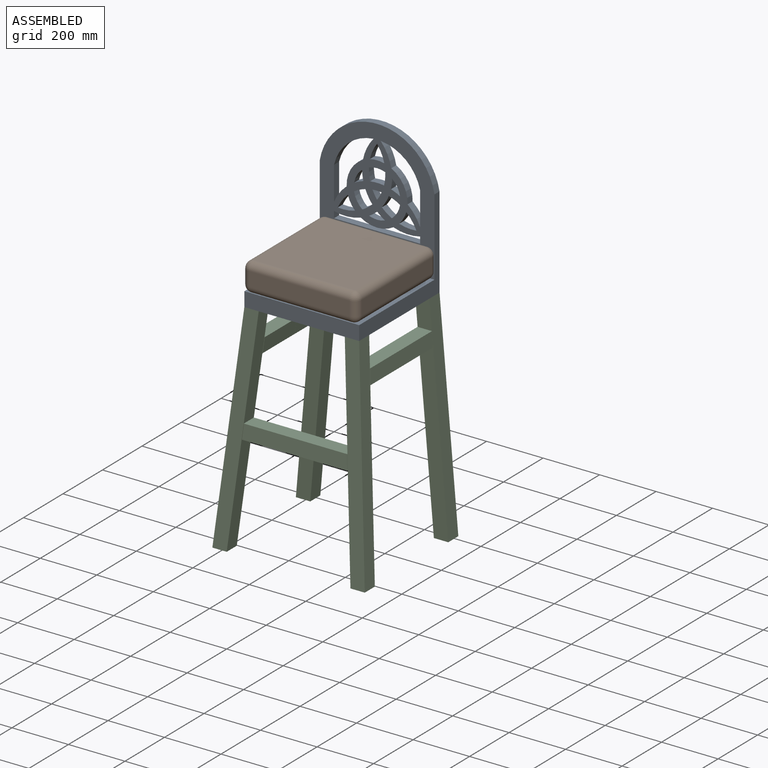
[diagram: assembled view]
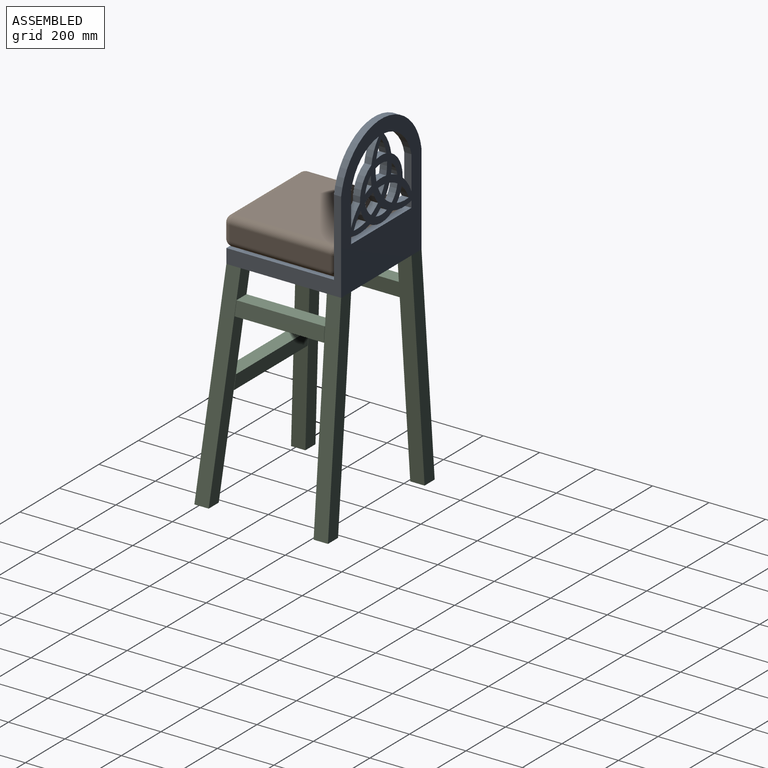
[diagram: assembled view, second angle]
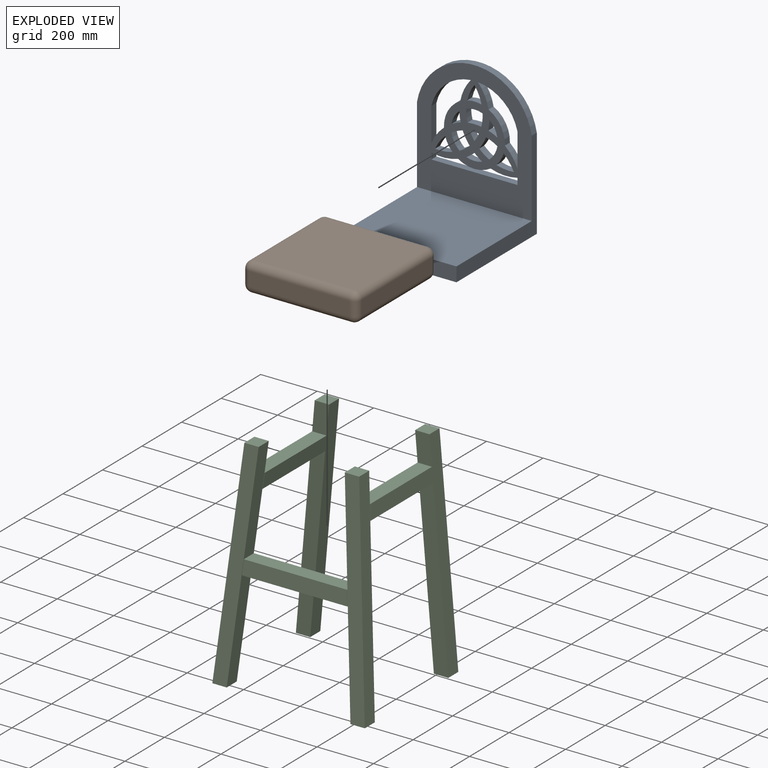
[diagram: exploded view]
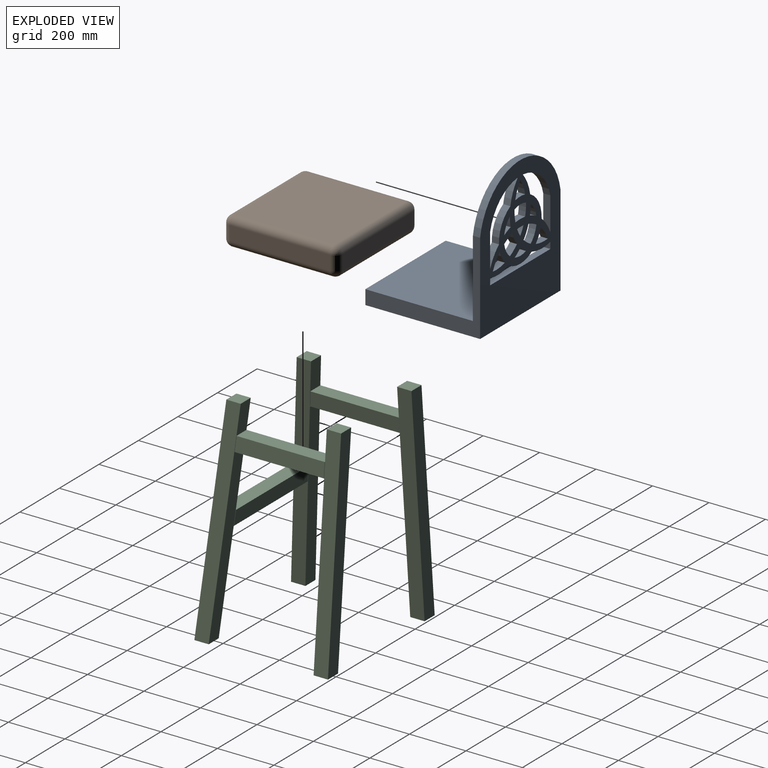
[diagram: exploded view, second angle]
ASSEMBLY  parts=3 mates=2
PART A: 57 faces, bbox 406.4x406.4x495.3 mm
  f0: plane 406.4x323.85mm, normal (-1,0,0), area 27580.6mm2, adj f1,f2,f4,f5,f6,f7
  f1: plane 495.3x406.4mm, normal (0,1,0), area 140049.4mm2, adj f0,f3,f6,f7,f8,f9,f10,f11
  f2: plane 444.5x406.4mm, normal (0,-1,0), area 119404.3mm2, adj f0,f3,f5,f7,f8,f9,f10,f11
  f3: plane 406.4x323.85mm, normal (1,0,0), area 27580.6mm2, adj f1,f2,f4,f5,f6,f7
  f4: plane 406.4x50.8mm, normal (0,-1,0), area 20645.1mm2, adj f0,f3,f5,f6
  f5: plane 406.4x381mm, normal (0,0,1), area 154838.4mm2, adj f0,f2,f3,f4
  f6: plane 406.4x406.4mm, normal (0,0,-1), area 165161mm2, adj f0,f1,f3,f4
  f7: cylinder r=206.14mm len=406.4mm, axis (0,-1,0), area 14678.6mm2, adj f0,f1,f2,f3
  f8: cylinder r=165.44mm len=42.58mm, axis (0,-1,0), area 1253.6mm2, adj f1,f2,f9,f11
  f9: cylinder r=152.4mm len=39.94mm, axis (0,-1,0), area 1114.7mm2, adj f1,f2,f8,f10
  f10: cylinder r=82.55mm len=50.43mm, axis (0,-1,0), area 1511.5mm2, adj f1,f2,f9,f11
  f11: cylinder r=152.4mm len=35.41mm, axis (0,-1,0), area 1114.7mm2, adj f1,f2,f8,f10
  f12: cylinder r=107.95mm len=44.07mm, axis (0,-1,0), area 1304.7mm2, adj f1,f2,f13,f14
  f13: cylinder r=152.4mm len=50.01mm, axis (0,-1,0), area 1572.1mm2, adj f1,f2,f12,f14
  f14: cylinder r=152.4mm len=61.18mm, axis (0,-1,0), area 1572.1mm2, adj f1,f2,f12,f13
  f15: cylinder r=165.44mm len=32.46mm, axis (0,-1,0), area 899.5mm2, adj f1,f2,f16,f17
  f16: cylinder r=165.44mm len=35.11mm, axis (0,-1,0), area 899.5mm2, adj f1,f2,f15,f17
  f17: cylinder r=82.55mm len=49.09mm, axis (0,-1,0), area 1469.8mm2, adj f1,f2,f15,f16
  f18: cylinder r=107.95mm len=50.88mm, axis (0,-1,0), area 1304.7mm2, adj f1,f2,f19,f20
  f19: cylinder r=152.4mm len=55.96mm, axis (0,-1,0), area 1572.1mm2, adj f1,f2,f18,f20
  f20: cylinder r=152.4mm len=55.96mm, axis (0,-1,0), area 1572.1mm2, adj f1,f2,f18,f19
  f21: cylinder r=107.95mm len=100.03mm, axis (0,-1,0), area 3095.5mm2, adj f1,f2,f22,f25
  f22: cylinder r=165.44mm len=77.43mm, axis (0,-1,0), area 2208.9mm2, adj f1,f2,f21,f23
  f23: cylinder r=156.58mm len=139.64mm, axis (0,-1,0), area 5001.8mm2, adj f1,f2,f22,f24
  f24: plane 118.4x25.4mm, normal (1,0,0), area 3007.3mm2, adj f1,f2,f23,f25
  f25: cylinder r=165.44mm len=61.07mm, axis (0,-1,0), area 1937mm2, adj f1,f2,f21,f24
  f26: cylinder r=165.44mm len=49.17mm, axis (0,-1,0), area 1253.6mm2, adj f1,f2,f27,f29
  f27: cylinder r=152.4mm len=43.5mm, axis (0,-1,0), area 1114.7mm2, adj f1,f2,f26,f28
  f28: cylinder r=82.55mm len=58.23mm, axis (0,-1,0), area 1511.5mm2, adj f1,f2,f27,f29
  f29: cylinder r=152.4mm len=43.5mm, axis (0,-1,0), area 1114.7mm2, adj f1,f2,f26,f28
  f30: cylinder r=165.44mm len=77.43mm, axis (0,-1,0), area 2208.9mm2, adj f1,f2,f31,f34
  f31: cylinder r=107.95mm len=100.03mm, axis (0,-1,0), area 3095.5mm2, adj f1,f2,f30,f32
  f32: cylinder r=165.44mm len=61.07mm, axis (0,-1,0), area 1937mm2, adj f1,f2,f31,f33
  f33: plane 118.4x25.4mm, normal (-1,0,0), area 3007.3mm2, adj f1,f2,f32,f34
  f34: cylinder r=156.58mm len=139.64mm, axis (0,-1,0), area 5001.8mm2, adj f1,f2,f30,f33
  f35: cylinder r=165.44mm len=35.11mm, axis (0,-1,0), area 899.5mm2, adj f1,f2,f36,f37
  f36: cylinder r=165.44mm len=32.46mm, axis (0,-1,0), area 899.5mm2, adj f1,f2,f35,f37
  f37: cylinder r=82.55mm len=49.09mm, axis (0,-1,0), area 1469.8mm2, adj f1,f2,f35,f36
  f38: cylinder r=152.4mm len=61.18mm, axis (0,-1,0), area 1572.1mm2, adj f1,f2,f39,f40
  f39: cylinder r=152.4mm len=50.01mm, axis (0,-1,0), area 1572.1mm2, adj f1,f2,f38,f40
  f40: cylinder r=107.95mm len=44.07mm, axis (0,-1,0), area 1304.7mm2, adj f1,f2,f38,f39
  f41: plane 25.4x22.92mm, normal (1,0,0), area 582.1mm2, adj f1,f2,f42,f46
  f42: plane 304.8x25.4mm, normal (0,0,1), area 7741.9mm2, adj f1,f2,f41,f43
  f43: plane 25.4x22.92mm, normal (-1,0,0), area 582.1mm2, adj f1,f2,f42,f44
  f44: cylinder r=165.44mm len=94.65mm, axis (0,-1,0), area 2440.9mm2, adj f1,f2,f43,f45
  f45: cylinder r=107.95mm len=115.5mm, axis (0,-1,0), area 3095.5mm2, adj f1,f2,f44,f46
  f46: cylinder r=165.44mm len=94.65mm, axis (0,-1,0), area 2440.9mm2, adj f1,f2,f41,f45
  f47: cylinder r=165.44mm len=28.34mm, axis (0,-1,0), area 899.5mm2, adj f1,f2,f48,f49
  f48: cylinder r=82.55mm len=56.69mm, axis (0,-1,0), area 1469.8mm2, adj f1,f2,f47,f49
  f49: cylinder r=165.44mm len=28.34mm, axis (0,-1,0), area 899.5mm2, adj f1,f2,f47,f48
  f50: cylinder r=152.4mm len=35.41mm, axis (0,-1,0), area 1114.7mm2, adj f1,f2,f51,f53
  f51: cylinder r=82.55mm len=50.43mm, axis (0,-1,0), area 1511.5mm2, adj f1,f2,f50,f52
  f52: cylinder r=152.4mm len=39.94mm, axis (0,-1,0), area 1114.7mm2, adj f1,f2,f51,f53
  f53: cylinder r=165.44mm len=42.58mm, axis (0,-1,0), area 1253.6mm2, adj f1,f2,f50,f52
  f54: cylinder r=152.4mm len=27.98mm, axis (0,-1,0), area 822mm2, adj f1,f2,f55,f56
  f55: cylinder r=152.4mm len=27.98mm, axis (0,-1,0), area 822mm2, adj f1,f2,f54,f56
  f56: cylinder r=152.4mm len=32.3mm, axis (0,-1,0), area 822mm2, adj f1,f2,f54,f55
PART B: 26 faces, bbox 406.4x406.4x101.6 mm
  f0: plane 355.6x50.8mm, normal (0,-1,0), area 18064.5mm2, adj f14,f19,f22,f25
  f1: plane 355.6x50.8mm, normal (1,0,0), area 18064.5mm2, adj f11,f20,f21,f25
  f2: plane 355.6x50.8mm, normal (0,1,0), area 18064.5mm2, adj f6,f10,f11,f12
  f3: plane 355.6x50.8mm, normal (-1,0,0), area 18064.5mm2, adj f6,f9,f13,f14
  f4: plane 355.6x355.6mm, normal (0,0,1), area 126451.4mm2, adj f9,f10,f19,f20
  f5: plane 355.6x355.6mm, normal (0,0,-1), area 126451.4mm2, adj f12,f13,f21,f22
  f6: cylinder r=25.4mm len=50.8mm, axis (0,0,1), area 2026.8mm2, adj f2,f3,f7,f8
  f7: sphere r=25.4mm, area 1013.4mm2, adj f6,f9,f10
  f8: sphere r=25.4mm, area 1013.4mm2, adj f6,f12,f13
  f9: cylinder r=25.4mm len=355.6mm, axis (0,1,0), area 14187.8mm2, adj f3,f4,f7,f15
  f10: cylinder r=25.4mm len=355.6mm, axis (1,0,0), area 14187.8mm2, adj f2,f4,f7,f16
  f11: cylinder r=25.4mm len=50.8mm, axis (0,0,-1), area 2026.8mm2, adj f1,f2,f16,f17
  f12: cylinder r=25.4mm len=355.6mm, axis (-1,0,0), area 14187.8mm2, adj f2,f5,f8,f17
  f13: cylinder r=25.4mm len=355.6mm, axis (0,-1,0), area 14187.8mm2, adj f3,f5,f8,f18
  f14: cylinder r=25.4mm len=50.8mm, axis (0,0,-1), area 2026.8mm2, adj f0,f3,f15,f18
  f15: sphere r=25.4mm, area 1013.4mm2, adj f9,f14,f19
  f16: sphere r=25.4mm, area 1013.4mm2, adj f10,f11,f20
  f17: sphere r=25.4mm, area 1013.4mm2, adj f11,f12,f21
  f18: sphere r=25.4mm, area 1013.4mm2, adj f13,f14,f22
  f19: cylinder r=25.4mm len=355.6mm, axis (-1,0,0), area 14187.8mm2, adj f0,f4,f15,f23
  f20: cylinder r=25.4mm len=355.6mm, axis (0,-1,0), area 14187.8mm2, adj f1,f4,f16,f23
  f21: cylinder r=25.4mm len=355.6mm, axis (0,1,0), area 14187.8mm2, adj f1,f5,f17,f24
  f22: cylinder r=25.4mm len=355.6mm, axis (1,0,0), area 14187.8mm2, adj f0,f5,f18,f24
  f23: sphere r=25.4mm, area 1013.4mm2, adj f19,f20,f25
  f24: sphere r=25.4mm, area 1013.4mm2, adj f21,f22,f25
  f25: cylinder r=25.4mm len=50.8mm, axis (0,0,1), area 2026.8mm2, adj f0,f1,f23,f24
PART C: 92 faces, bbox 539.7x473.1x762 mm
  f0: plane 373.37x50.8mm, normal (0,1,-0.09), area 18813mm2, adj f3,f23,f83,f87
  f1: plane 609.6x104.13mm, normal (0,1,-0.09), area 31086mm2, adj f2,f8,f9,f35,f45,f89
  f2: plane 355.6x81.91mm, normal (-1,0,-0.09), area 18133.4mm2, adj f1,f3,f22,f28,f34,f76,f88,f91
  f3: plane 367.02x50.8mm, normal (0,0,1), area 18641.5mm2, adj f0,f2,f4,f21,f49,f53,f83,f86
  f4: plane 355.6x81.91mm, normal (1,0,-0.09), area 18133.4mm2, adj f3,f20,f24,f27,f30,f80,f82,f86
  f5: plane 164.46x50.8mm, normal (1,0,-0.09), area 8273.3mm2, adj f6,f12,f43,f78
  f6: plane 313.69x50.99mm, normal (0,0,1), area 15963.4mm2, adj f5,f10,f13,f17,f27,f43,f54,f58
  f7: plane 315.59x50.8mm, normal (1,0,0.09), area 15980.1mm2, adj f9,f29,f66,f68
  f8: plane 762x117.47mm, normal (1,0,0.09), area 38857.5mm2, adj f1,f22,f28,f34,f35,f70
  f9: plane 318.13x50.99mm, normal (0,0,-1), area 16187.5mm2, adj f1,f7,f15,f19,f41,f42,f56,f66
  f10: plane 315.59x50.8mm, normal (-1,0,0.09), area 15980.1mm2, adj f6,f12,f59,f62
  f11: plane 762x117.47mm, normal (-1,0,0.09), area 38857.5mm2, adj f20,f24,f25,f27,f30,f60
  f12: plane 318.13x50.99mm, normal (0,0,-1), area 16187.5mm2, adj f5,f10,f17,f30,f40,f43,f54,f59
  f13: plane 101.6x59.69mm, normal (0,-1,0), area 5163mm2, adj f6,f18,f37,f55
  f14: plane 762x117.47mm, normal (0,1,0), area 38800.9mm2, adj f26,f31,f33,f36,f57
  f15: plane 152.4x50.8mm, normal (-1,0,-0.09), area 7771.5mm2, adj f9,f29,f42,f56
  f16: plane 179.14x50.8mm, normal (1,0,-0.09), area 9134.8mm2, adj f32,f39,f40,f55
  f17: plane 152.4x50.8mm, normal (1,0,-0.09), area 7771.5mm2, adj f6,f12,f43,f54
  f18: plane 50.8x50.8mm, normal (0,0,1), area 2580.6mm2, adj f13,f37,f39,f55
  f19: plane 660.4x104.18mm, normal (0,-1,0), area 31119.8mm2, adj f9,f26,f33,f36,f57,f65,f67
  f20: plane 762x117.47mm, normal (0,-1,0.09), area 38857.5mm2, adj f4,f11,f24,f25,f44,f50
  f21: plane 373.37x50.8mm, normal (0,-1,0.09), area 18813mm2, adj f3,f23,f46,f51
  f22: plane 762x117.47mm, normal (0,-1,0.09), area 38857.5mm2, adj f2,f8,f34,f35,f45,f47
  f23: plane 375.91x50.8mm, normal (0,0,-1), area 19093mm2, adj f0,f21,f44,f45,f46,f47,f48,f50
  f24: plane 50.8x50.8mm, normal (0,0,1), area 2580.6mm2, adj f4,f11,f20,f27
  f25: plane 50.8x50.8mm, normal (0,0,-1), area 2580.6mm2, adj f11,f20,f30,f44
  f26: plane 179.14x50.8mm, normal (-1,0,-0.09), area 9134.8mm2, adj f14,f19,f33,f57
  f27: plane 101.6x59.69mm, normal (0,1,-0.09), area 5180.9mm2, adj f4,f6,f11,f24,f77,f79
  f28: plane 101.6x59.69mm, normal (0,1,-0.09), area 5180.9mm2, adj f2,f8,f29,f34,f72,f74
  f29: plane 313.69x50.99mm, normal (0,0,1), area 15963.4mm2, adj f7,f15,f28,f38,f41,f42,f56,f65
  f30: plane 609.6x104.13mm, normal (0,1,-0.09), area 31086mm2, adj f4,f11,f12,f25,f44,f85
  f31: plane 50.8x50.8mm, normal (0,0,1), area 2580.6mm2, adj f14,f36,f38,f57
  f32: plane 50.99x50.8mm, normal (0,0,-1), area 2590.5mm2, adj f16,f37,f39,f40
  f33: plane 50.99x50.8mm, normal (0,0,-1), area 2590.5mm2, adj f14,f19,f26,f36
  f34: plane 50.8x50.8mm, normal (0,0,1), area 2580.6mm2, adj f2,f8,f22,f28
  f35: plane 50.8x50.8mm, normal (0,0,-1), area 2580.6mm2, adj f1,f8,f22,f45
  f36: plane 762x66.67mm, normal (1,0,0.09), area 38857.5mm2, adj f14,f19,f31,f33,f38
  f37: plane 762x66.67mm, normal (-1,0,0.09), area 38857.5mm2, adj f13,f18,f32,f39,f40
  f38: plane 101.6x59.69mm, normal (0,-1,0), area 5163mm2, adj f29,f31,f36,f57
  f39: plane 762x117.47mm, normal (0,1,0), area 38800.9mm2, adj f16,f18,f32,f37,f55
  f40: plane 660.4x104.18mm, normal (0,-1,0), area 31119.8mm2, adj f12,f16,f32,f37,f55,f63,f64
  f41: plane 164.46x50.8mm, normal (-1,0,-0.09), area 8273.3mm2, adj f9,f29,f42,f73
  f42: plane 50.8x4.64mm, normal (0,-1,0), area 9.9mm2, adj f9,f15,f29,f41
  f43: plane 50.8x4.64mm, normal (0,-1,0), area 9.9mm2, adj f5,f6,f12,f17
  f44: plane 355.6x81.91mm, normal (1,0,-0.09), area 18133.5mm2, adj f20,f23,f25,f30
  f45: plane 355.6x81.91mm, normal (-1,0,-0.09), area 18133.5mm2, adj f1,f22,f23,f35
  f46: plane 50.8x5.71mm, normal (1,0.01,0.09), area 64.9mm2, adj f21,f23,f48,f49
  f47: plane 50.8x5.71mm, normal (-1,-0.01,-0.09), area 64.9mm2, adj f22,f23,f48,f49
  f48: plane 50.69x5.7mm, normal (0,-1,0.09), area 64.6mm2, adj f23,f46,f47,f49
  f49: plane 1.27x1.27mm, normal (0,-0.09,-1), area 1.6mm2, adj f3,f46,f47,f48
  f50: plane 50.8x5.71mm, normal (1,-0.01,-0.09), area 64.9mm2, adj f20,f23,f52,f53
  f51: plane 50.8x5.71mm, normal (-1,0.01,0.09), area 64.9mm2, adj f21,f23,f52,f53
  f52: plane 50.69x5.7mm, normal (0,-1,0.09), area 64.6mm2, adj f23,f50,f51,f53
  f53: plane 1.27x1.27mm, normal (0,-0.09,-1), area 1.6mm2, adj f3,f50,f51,f52
  f54: plane 50.8x4.59mm, normal (0,1,0), area 7.7mm2, adj f6,f12,f17,f55
  f55: plane 582.86x50.8mm, normal (1,0,-0.09), area 29721.8mm2, adj f13,f16,f18,f39,f40,f54
  f56: plane 50.8x4.59mm, normal (0,1,0), area 7.7mm2, adj f9,f15,f29,f57
  f57: plane 582.86x50.8mm, normal (-1,0,-0.09), area 29721.8mm2, adj f14,f19,f26,f31,f38,f56
  f58: plane 1.27x1.27mm, normal (-0.09,0,-1), area 1.6mm2, adj f6,f59,f60,f61
  f59: plane 50.8x5.71mm, normal (0.01,-1,0.09), area 64.9mm2, adj f10,f12,f58,f61
  f60: plane 50.8x5.71mm, normal (-0.01,1,-0.09), area 64.9mm2, adj f11,f12,f58,f61
  f61: plane 50.69x5.7mm, normal (-1,0,0.09), area 64.6mm2, adj f12,f58,f59,f60
  f62: plane 50.8x5.71mm, normal (0,1,0), area 64.7mm2, adj f10,f12,f63,f64
  f63: plane 1.27x1.27mm, normal (-0.09,0,-1), area 1.6mm2, adj f6,f40,f62,f64
  f64: plane 50.69x4.43mm, normal (-1,0,0.09), area 64.6mm2, adj f12,f40,f62,f63
  f65: plane 1.27x1.27mm, normal (0.09,0,-1), area 1.6mm2, adj f19,f29,f66,f67
  f66: plane 50.8x5.71mm, normal (0,1,0), area 64.7mm2, adj f7,f9,f65,f67
  f67: plane 50.69x4.43mm, normal (1,0,0.09), area 64.6mm2, adj f9,f19,f65,f66
  f68: plane 50.8x5.71mm, normal (-0.01,-1,0.09), area 64.9mm2, adj f7,f9,f69,f71
  f69: plane 1.27x1.27mm, normal (0.09,0,-1), area 1.6mm2, adj f29,f68,f70,f71
  f70: plane 50.8x5.71mm, normal (0.01,1,-0.09), area 64.9mm2, adj f8,f9,f69,f71
  f71: plane 50.69x5.7mm, normal (1,0,0.09), area 64.6mm2, adj f9,f68,f69,f70
  f72: plane 1.27x0.11mm, normal (0.09,0,-1), area 0mm2, adj f28,f74,f76
  f73: plane 50.8x5.71mm, normal (-0.01,-1,0.09), area 64.9mm2, adj f29,f41,f74,f75
  f74: plane 50.8x5.7mm, normal (-1,0,-0.09), area 64.6mm2, adj f28,f29,f72,f73,f75,f76
  f75: plane 1.27x1.27mm, normal (-0.09,0,1), area 1.6mm2, adj f9,f73,f74,f76
  f76: plane 50.91x5.71mm, normal (0.01,1,-0.09), area 65mm2, adj f2,f72,f74,f75
  f77: plane 1.27x0.11mm, normal (-0.09,0,-1), area 0mm2, adj f27,f79,f80
  f78: plane 50.8x5.71mm, normal (0.01,-1,0.09), area 64.9mm2, adj f5,f6,f79,f81
  f79: plane 50.8x5.7mm, normal (1,0,-0.09), area 64.6mm2, adj f6,f27,f77,f78,f80,f81
  f80: plane 50.91x5.71mm, normal (-0.01,1,-0.09), area 65mm2, adj f4,f77,f79,f81
  f81: plane 1.27x1.27mm, normal (0.09,0,1), area 1.6mm2, adj f12,f78,f79,f80
  f82: plane 1.27x0.11mm, normal (0,-0.09,-1), area 0mm2, adj f4,f85,f86
  f83: plane 50.8x5.71mm, normal (-1,0.01,0.09), area 64.9mm2, adj f0,f3,f84,f86
  f84: plane 1.27x1.27mm, normal (0,0.09,1), area 1.6mm2, adj f23,f83,f85,f86
  f85: plane 50.91x5.71mm, normal (1,-0.01,-0.09), area 65mm2, adj f30,f82,f84,f86
  f86: plane 50.8x5.7mm, normal (0,1,-0.09), area 64.6mm2, adj f3,f4,f82,f83,f84,f85
  f87: plane 50.8x5.71mm, normal (1,0.01,0.09), area 64.9mm2, adj f0,f3,f90,f91
  f88: plane 1.27x0.11mm, normal (0,-0.09,-1), area 0mm2, adj f2,f89,f91
  f89: plane 50.91x5.71mm, normal (-1,-0.01,-0.09), area 65mm2, adj f1,f88,f90,f91
  f90: plane 1.27x1.27mm, normal (0,0.09,1), area 1.6mm2, adj f23,f87,f89,f91
  f91: plane 50.8x5.7mm, normal (0,1,-0.09), area 64.6mm2, adj f2,f3,f87,f88,f89,f90
PLACE A t=(-2.53,215.36,77.58)mm fixed
PLACE B t=(-2.53,202.66,128.38)mm
PLACE C t=(-2.53,215.36,-684.42)mm
MATE planar C.f34 <-> A.f6  axis (0,0,1) through (200.67,12.16,77.58)mm
MATE parallel A.f5 <-> B.f5  axis (0,0,1) through (-2.53,202.66,128.38)mm
